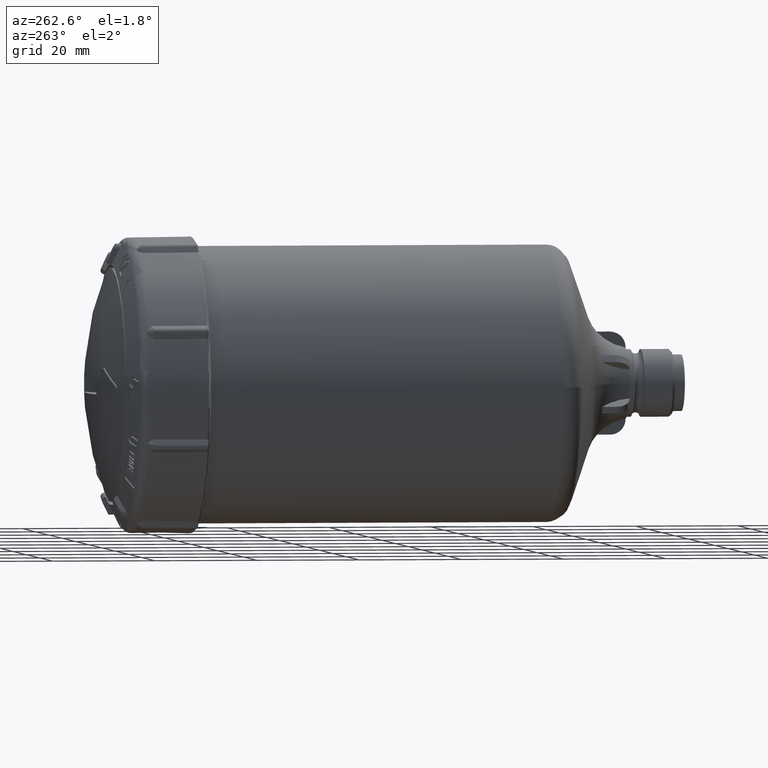
[diagram: clean part render]
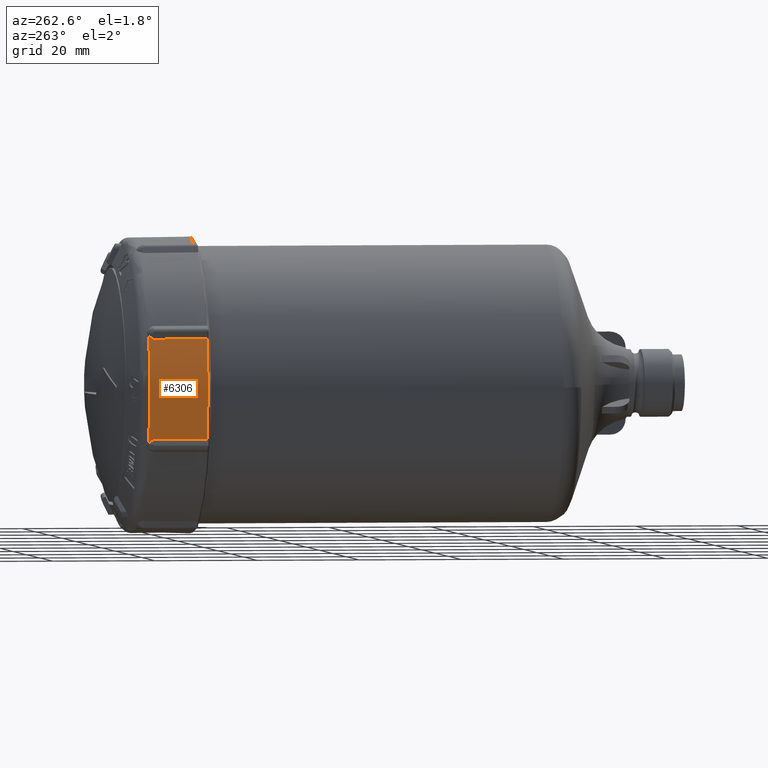
[diagram: same view with one face highlighted and labeled with its STEP entity id]
A machine part, auxiliary view. The second image highlights one B-rep face of the part: STEP entity #6306.
In plain terms, the highlighted conical surface has half-angle 0.5 deg.
Its self-contained STEP definition (entity closure, byte-faithful):
#139=CONICAL_SURFACE('',#6737,28.8076770206804,0.00872664625997145);
#264=LINE('',#9791,#568);
#268=LINE('',#9806,#572);
#568=VECTOR('',#7530,10.);
#572=VECTOR('',#7540,10.);
#1208=B_SPLINE_CURVE_WITH_KNOTS('',3,(#9748,#9749,#9750,#9751,#9752,#9753,
#9754,#9755,#9756,#9757),.UNSPECIFIED.,.F.,.F.,(4,2,2,2,4),(0.,0.0176420603399532,
0.0358691467892492,0.0565501842511273,0.0786366672600905),.UNSPECIFIED.);
#1211=B_SPLINE_CURVE_WITH_KNOTS('',3,(#9815,#9816,#9817,#9818,#9819,#9820,
#9821,#9822,#9823,#9824),.UNSPECIFIED.,.F.,.F.,(4,2,2,2,4),(5.18018849796183E-6,
0.0521836934287798,0.0836170366196206,0.106430164740624,0.129008428082427),
 .UNSPECIFIED.);
#1213=B_SPLINE_CURVE_WITH_KNOTS('',3,(#9831,#9832,#9833,#9834),
 .UNSPECIFIED.,.F.,.F.,(4,4),(0.,0.000616557049997715),.UNSPECIFIED.);
#1538=FACE_OUTER_BOUND('',#1896,.T.);
#1896=EDGE_LOOP('',(#4519,#4520,#4521,#4522,#4523,#4524,#4525,#4526));
#2265=CIRCLE('',#6709,0.467471093241846);
#2278=CIRCLE('',#6727,28.8591919251821);
#2287=CIRCLE('',#6738,28.7600344394821);
#2645=VERTEX_POINT('',#9162);
#2650=VERTEX_POINT('',#9186);
#2710=VERTEX_POINT('',#9746);
#2711=VERTEX_POINT('',#9747);
#2712=VERTEX_POINT('',#9758);
#2716=VERTEX_POINT('',#9803);
#2717=VERTEX_POINT('',#9813);
#2718=VERTEX_POINT('',#9814);
#3388=EDGE_CURVE('',#2710,#2711,#1208,.T.);
#3389=EDGE_CURVE('',#2712,#2710,#2265,.T.);
#3395=EDGE_CURVE('',#2645,#2712,#264,.T.);
#3400=EDGE_CURVE('',#2716,#2650,#268,.T.);
#3401=EDGE_CURVE('',#2717,#2718,#1211,.T.);
#3404=EDGE_CURVE('',#2718,#2716,#1213,.T.);
#3419=EDGE_CURVE('',#2645,#2650,#2278,.T.);
#3433=EDGE_CURVE('',#2717,#2711,#2287,.T.);
#4519=ORIENTED_EDGE('',*,*,#3395,.T.);
#4520=ORIENTED_EDGE('',*,*,#3389,.T.);
#4521=ORIENTED_EDGE('',*,*,#3388,.T.);
#4522=ORIENTED_EDGE('',*,*,#3433,.F.);
#4523=ORIENTED_EDGE('',*,*,#3401,.T.);
#4524=ORIENTED_EDGE('',*,*,#3404,.T.);
#4525=ORIENTED_EDGE('',*,*,#3400,.T.);
#4526=ORIENTED_EDGE('',*,*,#3419,.F.);
#6306=ADVANCED_FACE('',(#1538),#139,.T.);
#6709=AXIS2_PLACEMENT_3D('',#9759,#7521,#7522);
#6727=AXIS2_PLACEMENT_3D('',#9900,#7566,#7567);
#6737=AXIS2_PLACEMENT_3D('',#9965,#7587,#7588);
#6738=AXIS2_PLACEMENT_3D('',#9966,#7589,#7590);
#7521=DIRECTION('center_axis',(-0.38268343236509,3.18662225527712E-15,-0.923879532511287));
#7522=DIRECTION('ref_axis',(-0.92371854307178,0.0186675403560571,0.382616748355849));
#7530=DIRECTION('',(0.00806788809229115,0.999961832319102,-0.00335307124203278));
#7540=DIRECTION('',(-0.00806788809229029,-0.999961832319102,-0.0033530712420337));
#7566=DIRECTION('center_axis',(3.6814030682041E-17,-1.,-2.31725584917116E-17));
#7567=DIRECTION('ref_axis',(-0.502332310881175,-3.85296009966207E-17,0.864674649475037));
#7587=DIRECTION('center_axis',(3.6814030682041E-17,-1.,-2.31725584917116E-17));
#7588=DIRECTION('ref_axis',(-1.,-3.67702306362367E-17,-1.11022302462516E-16));
#7589=DIRECTION('center_axis',(-3.6814030682041E-17,1.,2.31725584917116E-17));
#7590=DIRECTION('ref_axis',(1.,3.6814030682041E-17,1.11022302462516E-16));
#9162=CARTESIAN_POINT('',(-27.1568876531139,0.407601157467383,9.76506075624162));
#9186=CARTESIAN_POINT('',(-27.1568876531139,0.407601157467384,-9.76506075624164));
#9746=CARTESIAN_POINT('',(-27.0736781190319,10.7163833487673,9.73059423865797));
#9747=CARTESIAN_POINT('',(-26.8184175685527,11.7699235988919,10.3880729723535));
#9748=CARTESIAN_POINT('Ctrl Pts',(-27.0736781190135,10.7163833493917,9.73059423865036));
#9749=CARTESIAN_POINT('Ctrl Pts',(-27.0727202023182,10.7751711988453,9.73174265175294));
#9750=CARTESIAN_POINT('Ctrl Pts',(-27.0678435219122,10.8340243660096,9.74381337701949));
#9751=CARTESIAN_POINT('Ctrl Pts',(-27.0497343631224,10.9615061522898,9.79070759244079));
#9752=CARTESIAN_POINT('Ctrl Pts',(-27.0359805365941,11.0321471597732,9.82693929101293));
#9753=CARTESIAN_POINT('Ctrl Pts',(-26.9943018641383,11.2061281813434,9.93650654609156));
#9754=CARTESIAN_POINT('Ctrl Pts',(-26.966093568277,11.3069029812134,10.0105120176172));
#9755=CARTESIAN_POINT('Ctrl Pts',(-26.8971847954725,11.5334841049848,10.1886924334354));
#9756=CARTESIAN_POINT('Ctrl Pts',(-26.8562842673431,11.6582714277221,10.2930118459525));
#9757=CARTESIAN_POINT('Ctrl Pts',(-26.8184175685528,11.7699235988919,10.3880729723535));
#9758=CARTESIAN_POINT('',(-27.07381254655,10.7102191229658,9.73063095778057));
#9759=CARTESIAN_POINT('Origin',(-26.6420103106617,10.7014925874674,9.55179157799118));
#9791=CARTESIAN_POINT('',(-27.1153258823958,5.55891014021657,9.74778739094844));
#9803=CARTESIAN_POINT('',(-27.0737641116778,10.7102191229658,-9.73051402565528));
#9806=CARTESIAN_POINT('',(-27.1153258823958,5.55891014021657,-9.74778739094847));
#9813=CARTESIAN_POINT('',(-26.8184175685527,11.7699235988919,-10.3880729723535));
#9814=CARTESIAN_POINT('',(-27.0736781190135,10.7163833493916,-9.73059423865037));
#9815=CARTESIAN_POINT('Ctrl Pts',(-26.8184175685527,11.7699235988919,-10.3880729723535));
#9816=CARTESIAN_POINT('Ctrl Pts',(-26.8619063436627,11.6416944076061,-10.2788981015615));
#9817=CARTESIAN_POINT('Ctrl Pts',(-26.9114757587266,11.4898558103385,-10.1521106854565));
#9818=CARTESIAN_POINT('Ctrl Pts',(-26.9763695405519,11.2695061035602,-9.98353105198742));
#9819=CARTESIAN_POINT('Ctrl Pts',(-27.0031726336254,11.1726536291858,-9.9132032944041));
#9820=CARTESIAN_POINT('Ctrl Pts',(-27.0395258747863,11.013446612434,-9.81759867329681));
#9821=CARTESIAN_POINT('Ctrl Pts',(-27.0515074521149,10.9506844230632,-9.78607941614652));
#9822=CARTESIAN_POINT('Ctrl Pts',(-27.0681969086541,10.8296970354739,-9.74293893419715));
#9823=CARTESIAN_POINT('Ctrl Pts',(-27.0727556923112,10.7729931593816,-9.73170010403124));
#9824=CARTESIAN_POINT('Ctrl Pts',(-27.0736781190135,10.7163833493915,-9.73059423865038));
#9831=CARTESIAN_POINT('Ctrl Pts',(-27.0736781190135,10.7163833493915,-9.73059423865038));
#9832=CARTESIAN_POINT('Ctrl Pts',(-27.0737115964124,10.7143288238805,-9.73055410375791));
#9833=CARTESIAN_POINT('Ctrl Pts',(-27.0737402622257,10.7122741315407,-9.73052736022582));
#9834=CARTESIAN_POINT('Ctrl Pts',(-27.0737641116778,10.7102191229658,-9.73051402565528));
#9900=CARTESIAN_POINT('Origin',(-2.23502024613415E-15,0.407601162316245,
-2.50643336953817E-15));
#9965=CARTESIAN_POINT('Origin',(-2.31888280284741E-16,6.31062453071154,
-1.49199166005781E-16));
#9966=CARTESIAN_POINT('Origin',(-4.32867083683171E-16,11.7699235988919,
-3.54478165099257E-15));